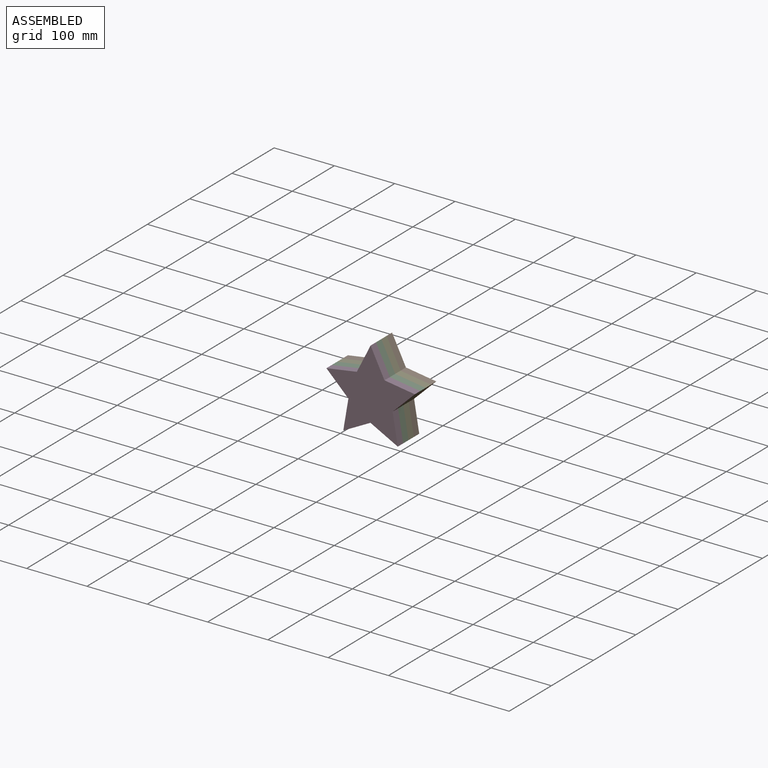
[diagram: assembled view]
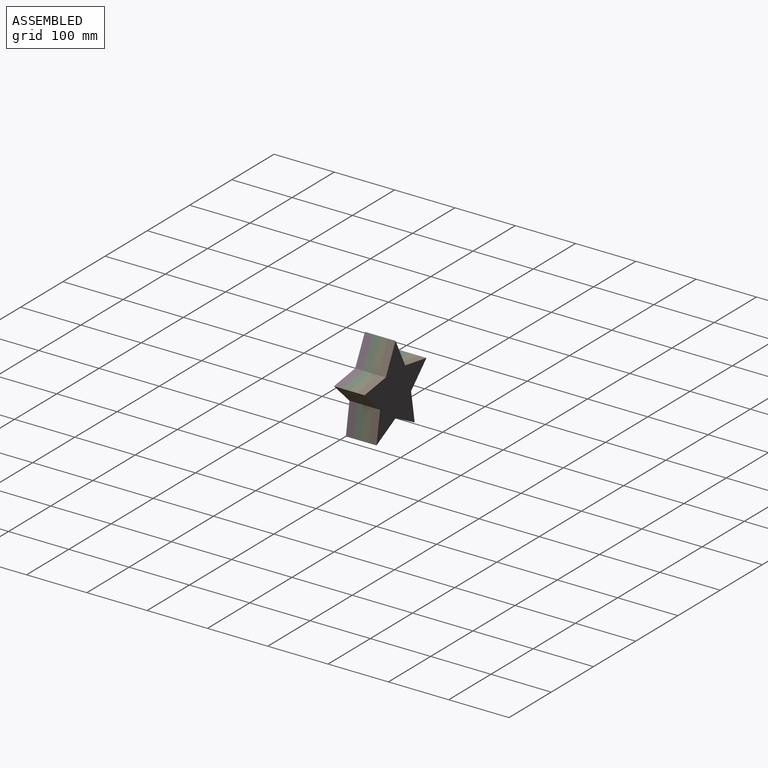
[diagram: assembled view, second angle]
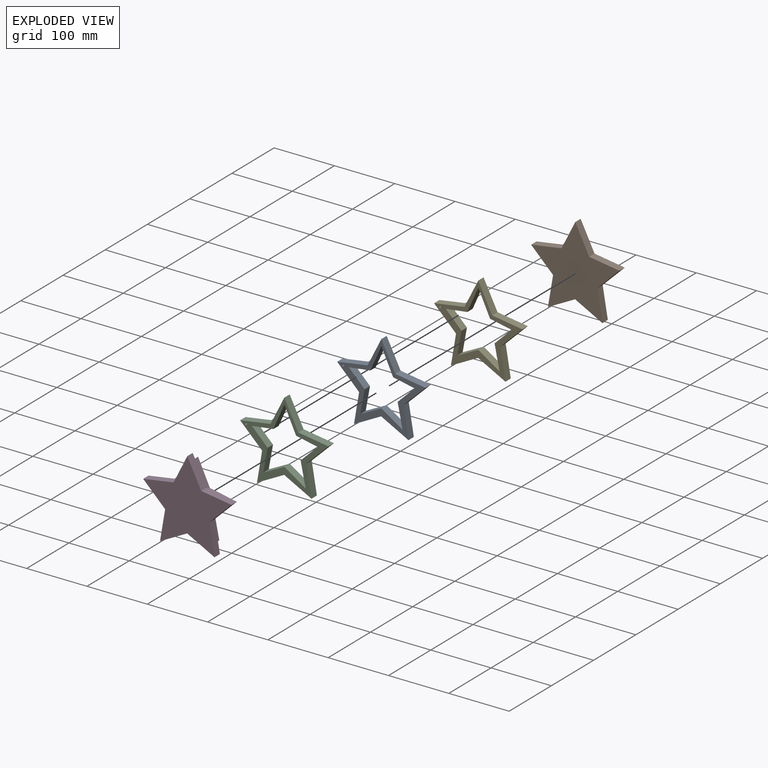
[diagram: exploded view]
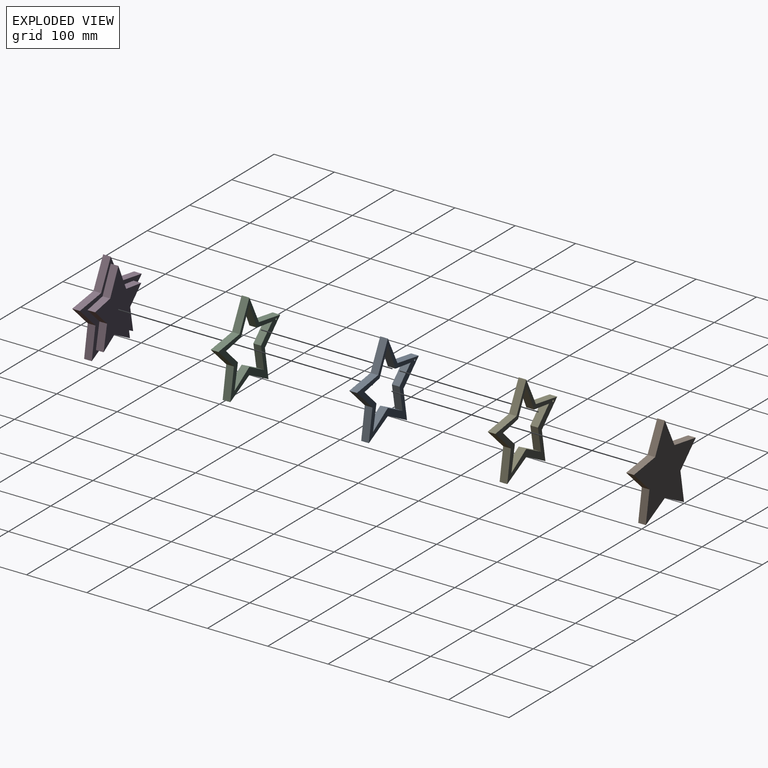
[diagram: exploded view, second angle]
ASSEMBLY  parts=5 mates=4
PART A: 23 faces, bbox 146.6x12.7x139.6 mm
  f0: plane 50.28x12.7mm, normal (0.15,0,0.99), area 645.7mm2, adj f1,f9,f10,f11
  f1: plane 46.04x23mm, normal (0.89,0,0.45), area 653.6mm2, adj f0,f2,f10,f11
  f2: plane 45.54x22.83mm, normal (-0.89,0,0.45), area 646.9mm2, adj f1,f3,f10,f11
  f3: plane 50.45x12.7mm, normal (-0.16,0,0.99), area 648.8mm2, adj f2,f4,f10,f11
  f4: plane 36.43x35.81mm, normal (-0.7,0,-0.71), area 648.7mm2, adj f3,f5,f10,f11
  f5: plane 50.19x12.7mm, normal (-0.99,0,0.17), area 646.5mm2, adj f4,f6,f10,f11
  f6: plane 45.08x23.65mm, normal (0.46,0,-0.89), area 646.5mm2, adj f5,f7,f10,f11
  f7: plane 45.33x23.65mm, normal (-0.46,0,-0.89), area 649.3mm2, adj f6,f8,f10,f11
  f8: plane 50.19x12.7mm, normal (0.99,0,0.17), area 646.5mm2, adj f7,f9,f10,f11
  f9: plane 36.76x35.81mm, normal (0.7,0,-0.72), area 651.8mm2, adj f0,f8,f10,f11
  f10: plane 146.56x139.55mm, normal (0,-1,0), area 3602.7mm2, adj f0,f1,f2,f3,f4,f5,f6,f7
  f11: plane 146.56x139.55mm, normal (0,1,0), area 3602.7mm2, adj f0,f1,f2,f3,f4,f5,f6,f7
  f12: plane 35.75x12.7mm, normal (-0.19,0,-0.98), area 462.8mm2, adj f10,f11,f13,f21
  f13: plane 41.49x19.42mm, normal (-0.91,0,-0.42), area 581.8mm2, adj f10,f11,f12,f14
  f14: plane 41.49x18.32mm, normal (0.91,0,-0.4), area 576mm2, adj f10,f11,f13,f15
  f15: plane 35.75x12.7mm, normal (0.13,0,-0.99), area 457.8mm2, adj f10,f11,f14,f16
  f16: plane 26.26x26.04mm, normal (0.7,0,0.71), area 469.7mm2, adj f10,f11,f15,f17
  f17: plane 38.84x12.7mm, normal (0.98,0,-0.18), area 501.4mm2, adj f10,f11,f16,f18
  f18: plane 34.76x17.65mm, normal (-0.45,0,0.89), area 495.1mm2, adj f10,f11,f17,f19
  f19: plane 35.2x22.73mm, normal (0.54,0,0.84), area 532.1mm2, adj f10,f11,f18,f20
  f20: plane 39.72x12.7mm, normal (-0.98,0,-0.2), area 515mm2, adj f10,f11,f19,f21
  f21: plane 28.25x27.81mm, normal (-0.7,0,0.71), area 503.4mm2, adj f10,f11,f12,f20
  f22: cylinder r=1.69mm len=12.7mm, axis (0,-1,0), area 134.5mm2, adj f10,f11
PART B: 12 faces, bbox 146.6x12.7x139.6 mm
  f0: plane 50.28x12.7mm, normal (0.15,0,0.99), area 645.7mm2, adj f1,f9,f10,f11
  f1: plane 46.04x23mm, normal (0.89,0,0.45), area 653.6mm2, adj f0,f2,f10,f11
  f2: plane 45.54x22.83mm, normal (-0.89,0,0.45), area 646.9mm2, adj f1,f3,f10,f11
  f3: plane 50.45x12.7mm, normal (-0.16,0,0.99), area 648.8mm2, adj f2,f4,f10,f11
  f4: plane 36.43x35.81mm, normal (-0.7,0,-0.71), area 648.7mm2, adj f3,f5,f10,f11
  f5: plane 50.19x12.7mm, normal (-0.99,0,0.17), area 646.5mm2, adj f4,f6,f10,f11
  f6: plane 45.08x23.65mm, normal (0.46,0,-0.89), area 646.5mm2, adj f5,f7,f10,f11
  f7: plane 45.33x23.65mm, normal (-0.46,0,-0.89), area 649.3mm2, adj f6,f8,f10,f11
  f8: plane 50.19x12.7mm, normal (0.99,0,0.17), area 646.5mm2, adj f7,f9,f10,f11
  f9: plane 36.76x35.81mm, normal (0.7,0,-0.72), area 651.8mm2, adj f0,f8,f10,f11
  f10: plane 146.56x139.55mm, normal (0,-1,0), area 8775.2mm2, adj f0,f1,f2,f3,f4,f5,f6,f7
  f11: plane 146.56x139.55mm, normal (0,1,0), area 8775.2mm2, adj f0,f1,f2,f3,f4,f5,f6,f7
PART C: same geometry as A
PART D: 23 faces, bbox 146.6x25.4x139.6 mm
  f0: plane 50.28x12.7mm, normal (0.15,0,0.99), area 645.7mm2, adj f1,f9,f10,f11
  f1: plane 46.04x23mm, normal (0.89,0,0.45), area 653.6mm2, adj f0,f2,f10,f11
  f2: plane 45.54x22.83mm, normal (-0.89,0,0.45), area 646.9mm2, adj f1,f3,f10,f11
  f3: plane 50.45x12.7mm, normal (-0.16,0,0.99), area 648.8mm2, adj f2,f4,f10,f11
  f4: plane 36.43x35.81mm, normal (-0.7,0,-0.71), area 648.7mm2, adj f3,f5,f10,f11
  f5: plane 50.19x12.7mm, normal (-0.99,0,0.17), area 646.5mm2, adj f4,f6,f10,f11
  f6: plane 45.08x23.65mm, normal (0.46,0,-0.89), area 646.5mm2, adj f5,f7,f10,f11
  f7: plane 45.33x23.65mm, normal (-0.46,0,-0.89), area 649.3mm2, adj f6,f8,f10,f11
  f8: plane 50.19x12.7mm, normal (0.99,0,0.17), area 646.5mm2, adj f7,f9,f10,f11
  f9: plane 36.76x35.81mm, normal (0.7,0,-0.72), area 651.8mm2, adj f0,f8,f10,f11
  f10: plane 146.56x139.55mm, normal (0,-1,0), area 8775.2mm2, adj f0,f1,f2,f3,f4,f5,f6,f7
  f11: plane 146.56x139.55mm, normal (0,1,0), area 3611.6mm2, adj f0,f1,f2,f3,f4,f5,f6,f7
  f12: plane 35.75x12.7mm, normal (0.19,0,0.98), area 462.8mm2, adj f11,f13,f21,f22
  f13: plane 41.49x19.42mm, normal (0.91,0,0.42), area 581.8mm2, adj f11,f12,f14,f22
  f14: plane 41.49x18.32mm, normal (-0.91,0,0.4), area 576mm2, adj f11,f13,f15,f22
  f15: plane 35.75x12.7mm, normal (-0.13,0,0.99), area 457.8mm2, adj f11,f14,f16,f22
  f16: plane 26.26x26.04mm, normal (-0.7,0,-0.71), area 469.7mm2, adj f11,f15,f17,f22
  f17: plane 38.84x12.7mm, normal (-0.98,0,0.18), area 501.4mm2, adj f11,f16,f18,f22
  f18: plane 34.76x17.65mm, normal (0.45,0,-0.89), area 495.1mm2, adj f11,f17,f19,f22
  f19: plane 35.2x22.73mm, normal (-0.54,0,-0.84), area 532.1mm2, adj f11,f18,f20,f22
  f20: plane 39.72x12.7mm, normal (0.98,0,0.2), area 515mm2, adj f11,f19,f21,f22
  f21: plane 28.25x27.81mm, normal (0.7,0,-0.71), area 503.4mm2, adj f11,f12,f20,f22
  f22: plane 116.08x109.24mm, normal (0,1,0), area 5163.6mm2, adj f12,f13,f14,f15,f16,f17,f18,f19
PART E: same geometry as A
PLACE A t=(-36.26,42.17,9.77)mm
PLACE B t=(-36.26,54.87,9.77)mm fixed
PLACE C t=(-36.26,29.47,9.77)mm
PLACE D rot(axis=(0,-1,0),0deg) t=(-36.28,16.77,9.8)mm
PLACE E t=(-36.26,42.17,9.77)mm
MATE fastened B.f10 <-> A.f11  axis (0,-1,0) through (-52.64,42.17,9.77)mm
MATE revolute C.f10 <-> D.f11  axis (0,-1,0) through (-125.92,16.77,-43.79)mm
MATE fastened B.f10 <-> E.f11  axis (0,-1,0) through (-52.64,42.17,9.77)mm
MATE fastened A.f10 <-> C.f11  axis (0,-1,0) through (-52.64,29.47,9.77)mm
